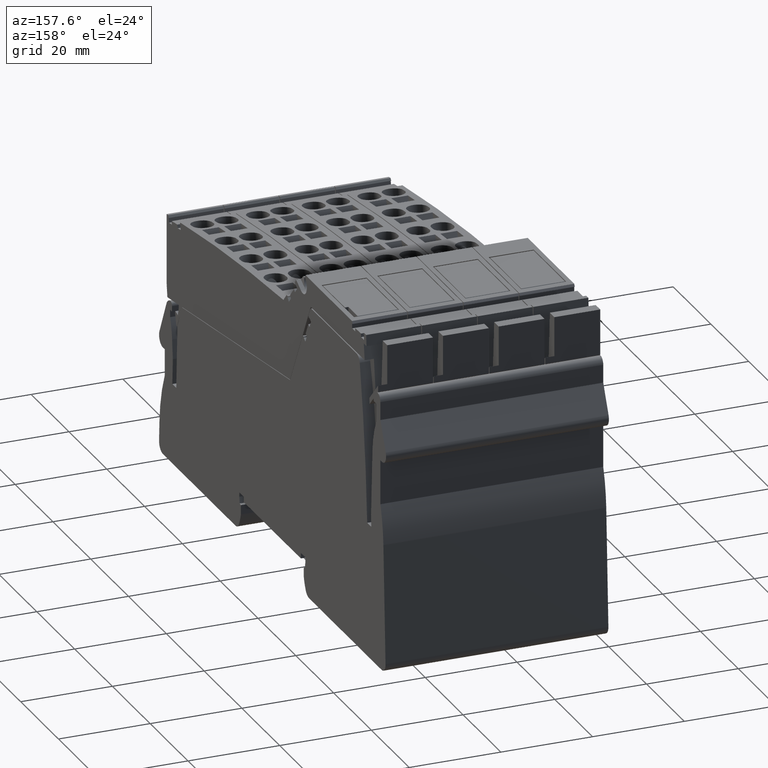
[diagram: clean part render]
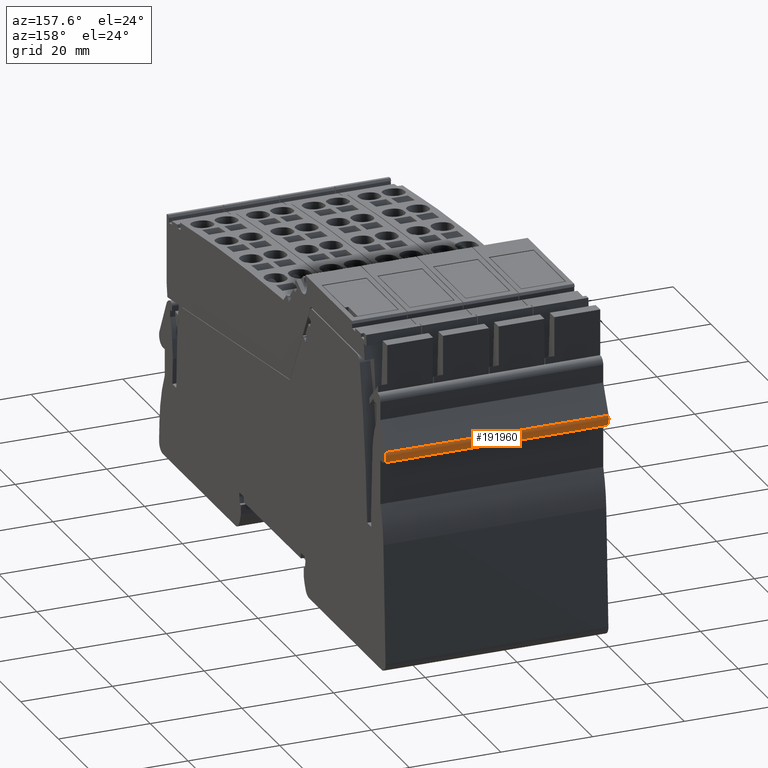
[diagram: same view with one face highlighted and labeled with its STEP entity id]
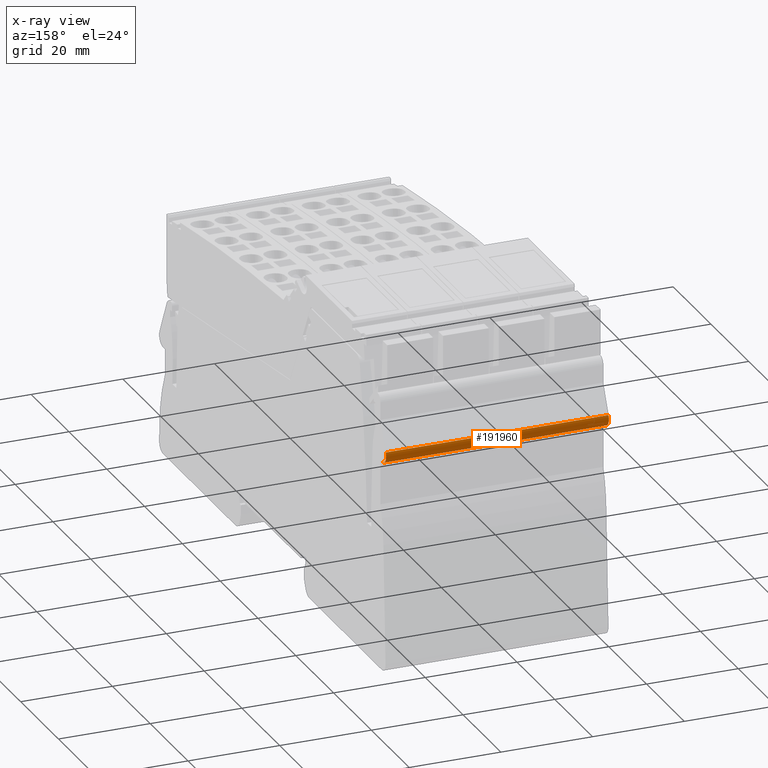
[diagram: x-ray of the same camera — body ghosted, the highlighted face saturated]
A machine part, auxiliary view. The second image highlights one B-rep face of the part: STEP entity #191960.
The next image is the same camera in x-ray: the body ghosted, the highlighted face saturated — about 0% of this face is hidden behind the body in this view.
In plain terms, the highlighted cylindrical surface (edge-blend (fillet) strip) has radius 2 mm, axis along (1, 0, 0).
Its self-contained STEP definition (entity closure, byte-faithful):
#174750=CARTESIAN_POINT('',(296.541235782933,-14.1090415733126,36.45));
#174760=VERTEX_POINT('',#174750);
#174790=CARTESIAN_POINT('',(294.72862020886,-14.954278096794,36.45));
#174800=DIRECTION('',(0.,0.,1.));
#174810=DIRECTION('',(1.,-1.05193631583234E-14,0.));
#174820=AXIS2_PLACEMENT_3D('',#174790,#174800,#174810);
#174830=CIRCLE('',#174820,2.);
#174840=CARTESIAN_POINT('',(294.72862020886,-16.954278096794,36.45));
#174850=VERTEX_POINT('',#174840);
#174860=EDGE_CURVE('',#174850,#174760,#174830,.T.);
#184890=CARTESIAN_POINT('',(294.72862020886,-16.954278096794,-12.15));
#184900=VERTEX_POINT('',#184890);
#184930=CARTESIAN_POINT('',(294.72862020886,-14.954278096794,-12.15));
#184940=DIRECTION('',(0.,0.,1.));
#184950=DIRECTION('',(1.,-1.05193631583234E-14,0.));
#184960=AXIS2_PLACEMENT_3D('',#184930,#184940,#184950);
#184970=CIRCLE('',#184960,2.);
#184980=CARTESIAN_POINT('',(296.541235782933,-14.1090415733126,-12.15));
#184990=VERTEX_POINT('',#184980);
#185000=EDGE_CURVE('',#184900,#184990,#184970,.T.);
#188460=CARTESIAN_POINT('',(294.72862020886,-16.954278096794,
6.14999999999999));
#188470=DIRECTION('',(0.,0.,1.));
#188480=VECTOR('',#188470,1.);
#188490=LINE('',#188460,#188480);
#188500=EDGE_CURVE('',#184900,#174850,#188490,.T.);
#191800=CARTESIAN_POINT('',(294.72862020886,-14.954278096794,
6.14999999999999));
#191810=DIRECTION('',(0.,0.,1.));
#191820=DIRECTION('',(1.,-1.05193631583234E-14,0.));
#191830=AXIS2_PLACEMENT_3D('',#191800,#191810,#191820);
#191840=CYLINDRICAL_SURFACE('',#191830,2.);
#191850=ORIENTED_EDGE('',*,*,#185000,.T.);
#191860=ORIENTED_EDGE('',*,*,#188500,.F.);
#191870=ORIENTED_EDGE('',*,*,#174860,.F.);
#191880=CARTESIAN_POINT('',(296.541235782933,-14.1090415733126,
6.14999999999999));
#191890=DIRECTION('',(0.,0.,1.));
#191900=VECTOR('',#191890,1.);
#191910=LINE('',#191880,#191900);
#191920=EDGE_CURVE('',#184990,#174760,#191910,.T.);
#191930=ORIENTED_EDGE('',*,*,#191920,.T.);
#191940=EDGE_LOOP('',(#191930,#191870,#191860,#191850));
#191950=FACE_OUTER_BOUND('',#191940,.T.);
#191960=ADVANCED_FACE('',(#191950),#191840,.T.);